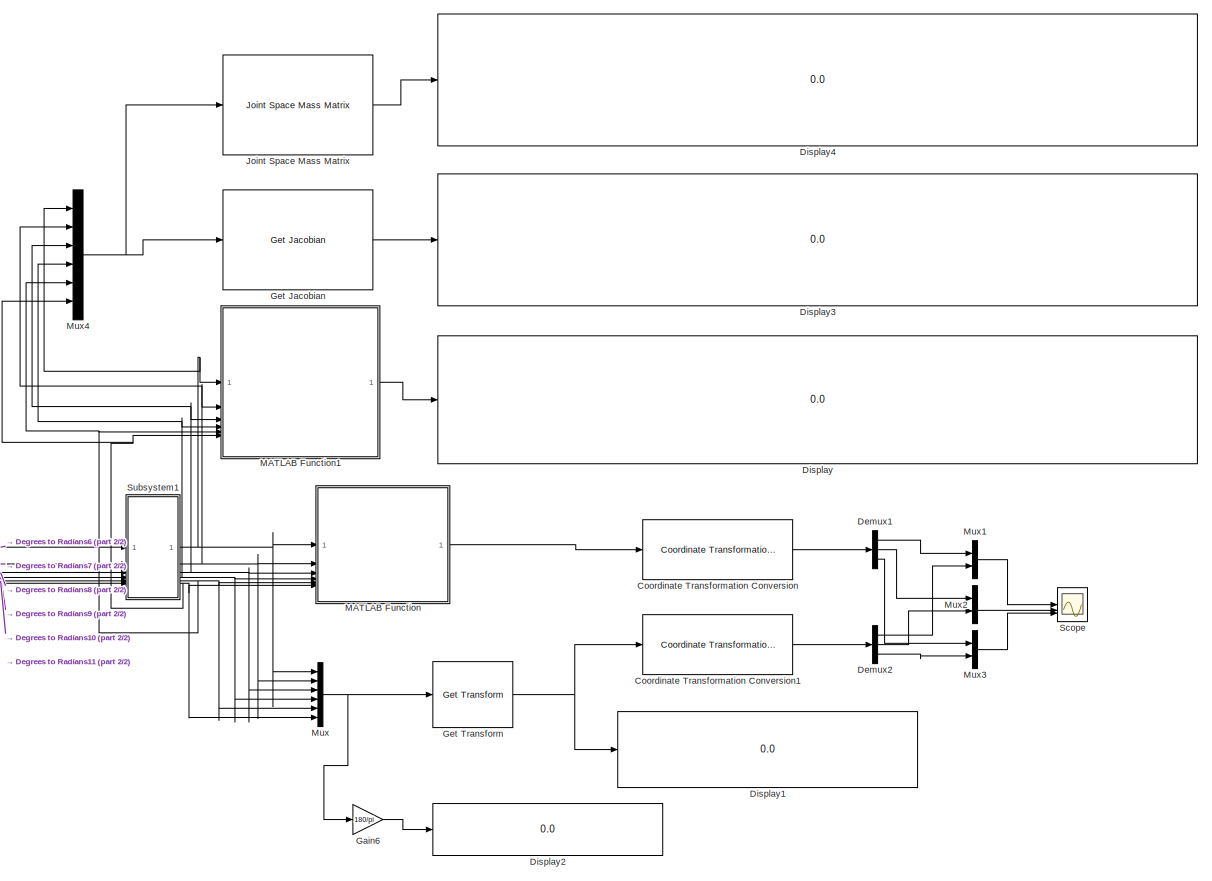
[diagram: root canvas - part 1/2, most of the canvas]
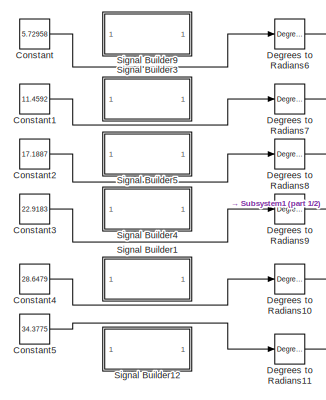
[diagram: root canvas - part 2/2, bottom left region]
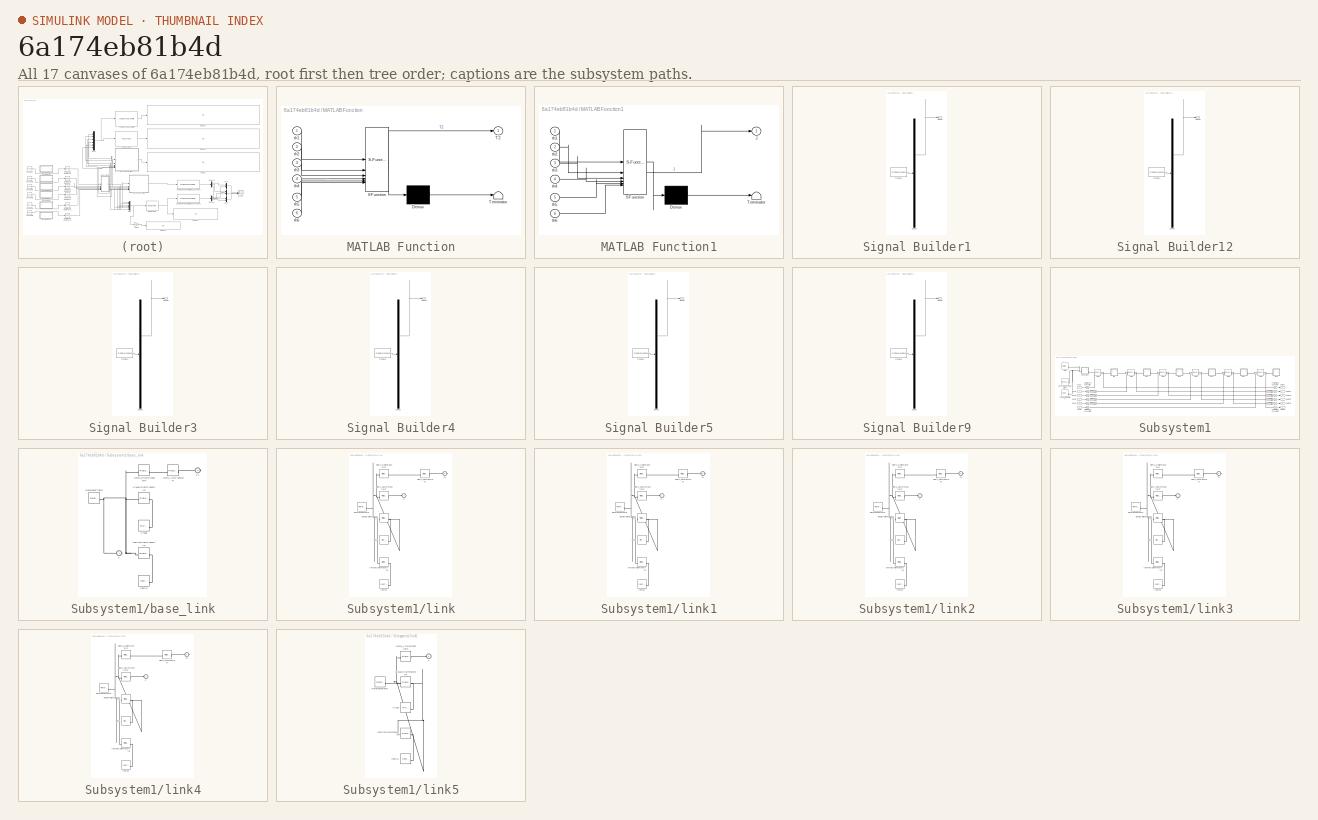
[diagram: thumbnail index - all 17 canvases of the model, root first then tree order]
MODEL slx_6a174eb81b4d
KIND model
CONFIG AbsTol = auto
CONFIG EnableMultiTasking = off
CONFIG FixedStep = auto
CONFIG MaxStep = auto
CONFIG MinStep = auto
CONFIG RelTol = 1e-3
CONFIG SampleTimeConstraint = Unconstrained
CONFIG SolverName = VariableStepAuto
CONFIG StartTime = 0.0
CONFIG StopTime = 5
BLOCK [Constant] Constant
  Value = 5.72958
BLOCK [Constant] Constant1
  Value = 11.4592
BLOCK [Constant] Constant2
  Value = 17.1887
BLOCK [Constant] Constant3
  Value = 22.9183
BLOCK [Constant] Constant4
  Value = 28.6479
BLOCK [Constant] Constant5
  Value = 34.3775
BLOCK [Reference] Coordinate Transformation Conversion  REF=robotcorelib/Coordinate Transformation Conversion
  SourceBlock = robotcorelib/Coordinate Transformation Conversion
  SourceType = robotics.slcore.internal.block.CoordinateTransformationConversion
BLOCK [Reference] Coordinate Transformation Conversion1  REF=robotcorelib/Coordinate Transformation Conversion
  SourceBlock = robotcorelib/Coordinate Transformation Conversion
  SourceType = robotics.slcore.internal.block.CoordinateTransformationConversion
BLOCK [Reference] Degrees to Radians10  REF=simulink_extras/Transformations/Degrees to
Radians
  SourceBlock = simulink_extras/Transformations/Degrees to\nRadians
  SourceType = DegreesToRadians
BLOCK [Reference] Degrees to Radians11  REF=simulink_extras/Transformations/Degrees to
Radians
  SourceBlock = simulink_extras/Transformations/Degrees to\nRadians
  SourceType = DegreesToRadians
BLOCK [Reference] Degrees to Radians6  REF=simulink_extras/Transformations/Degrees to
Radians
  SourceBlock = simulink_extras/Transformations/Degrees to\nRadians
  SourceType = DegreesToRadians
BLOCK [Reference] Degrees to Radians7  REF=simulink_extras/Transformations/Degrees to
Radians
  SourceBlock = simulink_extras/Transformations/Degrees to\nRadians
  SourceType = DegreesToRadians
BLOCK [Reference] Degrees to Radians8  REF=simulink_extras/Transformations/Degrees to
Radians
  SourceBlock = simulink_extras/Transformations/Degrees to\nRadians
  SourceType = DegreesToRadians
BLOCK [Reference] Degrees to Radians9  REF=simulink_extras/Transformations/Degrees to
Radians
  SourceBlock = simulink_extras/Transformations/Degrees to\nRadians
  SourceType = DegreesToRadians
BLOCK [Demux] Demux1
  Outputs = 3
BLOCK [Demux] Demux2
  Outputs = 3
BLOCK [Display] Display
  Decimation = 1
  Format = long
BLOCK [Display] Display1
  Decimation = 1
BLOCK [Display] Display2
  Decimation = 1
BLOCK [Display] Display3
  Decimation = 1
  Format = long
BLOCK [Display] Display4
  Decimation = 1
  Format = long
BLOCK [Gain] Gain6
  Gain = 180/pi
BLOCK [Reference] Get Jacobian  REF=robotmaniplib/Get Jacobian
  SourceBlock = robotmaniplib/Get Jacobian
  SourceType = Get Jacobian
BLOCK [Reference] Get Transform  REF=robotmaniplib/Get Transform
  SourceBlock = robotmaniplib/Get Transform
  SourceType = Get Transform
BLOCK [Reference] Joint Space Mass Matrix  REF=robotmaniplib/Joint Space Mass Matrix
  SourceBlock = robotmaniplib/Joint Space Mass Matrix
  SourceType = Joint Space Mass Matrix
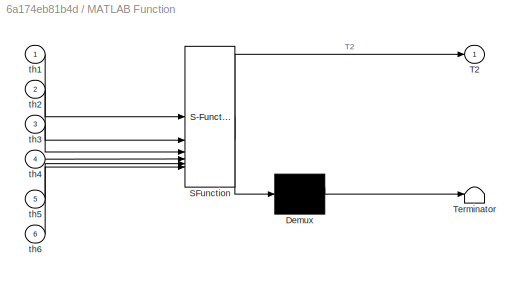
BLOCK [SubSystem] MATLAB Function
  ErrorFcn = Stateflow.Translate.translate
  PermitHierarchicalResolution = ExplicitOnly
  SFBlockType = MATLAB Function
  TreatAsAtomicUnit = on
BLOCK [Demux] MATLAB Function/ Demux 
  Outputs = 1
BLOCK [S-Function] MATLAB Function/ SFunction 
  EnableBusSupport = on
  FunctionName = sf_sfun
  PortCounts = [6 2]
  SFcnIsStateOwnerBlock = off
  SFunctionDeploymentMode = off
  Tag = Stateflow S-Function 2
BLOCK [Terminator] MATLAB Function/ Terminator 
BLOCK [Outport] MATLAB Function/T2
BLOCK [Inport] MATLAB Function/th1
BLOCK [Inport] MATLAB Function/th2
  Port = 2
BLOCK [Inport] MATLAB Function/th3
  Port = 3
BLOCK [Inport] MATLAB Function/th4
  Port = 4
BLOCK [Inport] MATLAB Function/th5
  Port = 5
BLOCK [Inport] MATLAB Function/th6
  Port = 6
BLOCK [SubSystem] MATLAB Function1
  ErrorFcn = Stateflow.Translate.translate
  LibrarySourceBlock = simulink/User-Defined\nFunctions/MATLAB Function
  PermitHierarchicalResolution = ExplicitOnly
  SFBlockType = MATLAB Function
  TreatAsAtomicUnit = on
BLOCK [Demux] MATLAB Function1/ Demux 
  Outputs = 1
BLOCK [S-Function] MATLAB Function1/ SFunction 
  EnableBusSupport = on
  FunctionName = sf_sfun
  PortCounts = [6 2]
  SFcnIsStateOwnerBlock = off
  SFunctionDeploymentMode = off
  Tag = Stateflow S-Function 1
BLOCK [Terminator] MATLAB Function1/ Terminator 
BLOCK [Outport] MATLAB Function1/J
BLOCK [Inport] MATLAB Function1/th1
BLOCK [Inport] MATLAB Function1/th2
  Port = 2
BLOCK [Inport] MATLAB Function1/th3
  Port = 3
BLOCK [Inport] MATLAB Function1/th4
  Port = 4
BLOCK [Inport] MATLAB Function1/th5
  Port = 5
BLOCK [Inport] MATLAB Function1/th6
  Port = 6
BLOCK [Mux] Mux
  AttributesFormatString = %<Single>
  DisplayOption = bar
  Inputs = 6
BLOCK [Mux] Mux1
  DisplayOption = bar
  Inputs = 2
BLOCK [Mux] Mux2
  DisplayOption = bar
  Inputs = 2
BLOCK [Mux] Mux3
  DisplayOption = bar
  Inputs = 2
BLOCK [Mux] Mux4
  DisplayOption = bar
  Inputs = 6
BLOCK [Scope] Scope
  Floating = off
  NumInputPorts = 3
  ScopeSpecificationString = Simulink.scopes.TimeScopeBlockCfg('CurrentConfiguration', extmgr.ConfigurationSet(extmgr.Configuration('Core','General UI',true,'FigureColor',[0 0 0]),extmgr.Configuration('Core','Source UI',true),extmgr.Configuration('Sources','WiredSimulink',true),extmgr.Configuration('Visuals','Time Domain',true,'SerializedDisplays',{struct('MinYLimReal','0.106','MaxYLimReal','0.92596','YLabelReal','','MinYLimM...<+3248ch>
BLOCK [SubSystem] Signal Builder1
  ClipboardFcn = sigbuilder_block('clipboard');
  CloseFcn = sigbuilder_block('close');
  Commented = on
  ContinueFcn = sigbuilder_block('continue');
  CopyFcn = sigbuilder_block('copy');
  DeleteFcn = sigbuilder_block('delete');
  LoadFcn = sigbuilder_block('load');
  MaskHideContents = on
  ModelCloseFcn = sigbuilder_block('modelClose');
  NameChangeFcn = sigbuilder_block('namechange');
  OpenFcn = sigbuilder_block('open',[5.5 36 949 412 ]);
  PauseFcn = sigbuilder_block('pause');
  PreSaveFcn = sigbuilder_block('preSave');
  StartFcn = sigbuilder_block('start');
  StopFcn = sigbuilder_block('stop');
  Tag = STV Subsys
BLOCK [Demux] Signal Builder1/Demux
  DisplayOption = none
  Outputs = 1
  Tag = STV Demux
BLOCK [FromWorkspace] Signal Builder1/FromWs
  Tag = STV FromWs
  VariableName = tuvar
BLOCK [Outport] Signal Builder1/Signal 1
  Tag = STV Outport
BLOCK [SubSystem] Signal Builder12
  ClipboardFcn = sigbuilder_block('clipboard');
  CloseFcn = sigbuilder_block('close');
  Commented = on
  ContinueFcn = sigbuilder_block('continue');
  CopyFcn = sigbuilder_block('copy');
  DeleteFcn = sigbuilder_block('delete');
  LoadFcn = sigbuilder_block('load');
  MaskHideContents = on
  ModelCloseFcn = sigbuilder_block('modelClose');
  NameChangeFcn = sigbuilder_block('namechange');
  OpenFcn = sigbuilder_block('open',[253.5 117 550.5 322 ]);
  PauseFcn = sigbuilder_block('pause');
  PreSaveFcn = sigbuilder_block('preSave');
  StartFcn = sigbuilder_block('start');
  StopFcn = sigbuilder_block('stop');
  Tag = STV Subsys
BLOCK [Demux] Signal Builder12/Demux
  DisplayOption = none
  Outputs = 1
  Tag = STV Demux
BLOCK [FromWorkspace] Signal Builder12/FromWs
  Tag = STV FromWs
  VariableName = tuvar
BLOCK [Outport] Signal Builder12/Signal 2
  Tag = STV Outport
BLOCK [SubSystem] Signal Builder3
  ClipboardFcn = sigbuilder_block('clipboard');
  CloseFcn = sigbuilder_block('close');
  Commented = on
  ContinueFcn = sigbuilder_block('continue');
  CopyFcn = sigbuilder_block('copy');
  DeleteFcn = sigbuilder_block('delete');
  LoadFcn = sigbuilder_block('load');
  MaskHideContents = on
  ModelCloseFcn = sigbuilder_block('modelClose');
  NameChangeFcn = sigbuilder_block('namechange');
  OpenFcn = sigbuilder_block('open',[5.5 36 949 412 ]);
  PauseFcn = sigbuilder_block('pause');
  PreSaveFcn = sigbuilder_block('preSave');
  StartFcn = sigbuilder_block('start');
  StopFcn = sigbuilder_block('stop');
  Tag = STV Subsys
BLOCK [Demux] Signal Builder3/Demux
  DisplayOption = none
  Outputs = 1
  Tag = STV Demux
BLOCK [FromWorkspace] Signal Builder3/FromWs
  Tag = STV FromWs
  VariableName = tuvar
BLOCK [Outport] Signal Builder3/Signal 2
  Tag = STV Outport
BLOCK [SubSystem] Signal Builder4
  ClipboardFcn = sigbuilder_block('clipboard');
  CloseFcn = sigbuilder_block('close');
  Commented = on
  ContinueFcn = sigbuilder_block('continue');
  CopyFcn = sigbuilder_block('copy');
  DeleteFcn = sigbuilder_block('delete');
  LoadFcn = sigbuilder_block('load');
  MaskHideContents = on
  ModelCloseFcn = sigbuilder_block('modelClose');
  NameChangeFcn = sigbuilder_block('namechange');
  OpenFcn = sigbuilder_block('open',[5.5 36 949 412 ]);
  PauseFcn = sigbuilder_block('pause');
  PreSaveFcn = sigbuilder_block('preSave');
  StartFcn = sigbuilder_block('start');
  StopFcn = sigbuilder_block('stop');
  Tag = STV Subsys
BLOCK [Demux] Signal Builder4/Demux
  DisplayOption = none
  Outputs = 1
  Tag = STV Demux
BLOCK [FromWorkspace] Signal Builder4/FromWs
  Tag = STV FromWs
  VariableName = tuvar
BLOCK [Outport] Signal Builder4/Signal 1
  Tag = STV Outport
BLOCK [SubSystem] Signal Builder5
  ClipboardFcn = sigbuilder_block('clipboard');
  CloseFcn = sigbuilder_block('close');
  Commented = on
  ContinueFcn = sigbuilder_block('continue');
  CopyFcn = sigbuilder_block('copy');
  DeleteFcn = sigbuilder_block('delete');
  LoadFcn = sigbuilder_block('load');
  MaskHideContents = on
  ModelCloseFcn = sigbuilder_block('modelClose');
  NameChangeFcn = sigbuilder_block('namechange');
  OpenFcn = sigbuilder_block('open',[5.5 36 949 412 ]);
  PauseFcn = sigbuilder_block('pause');
  PreSaveFcn = sigbuilder_block('preSave');
  StartFcn = sigbuilder_block('start');
  StopFcn = sigbuilder_block('stop');
  Tag = STV Subsys
BLOCK [Demux] Signal Builder5/Demux
  DisplayOption = none
  Outputs = 1
  Tag = STV Demux
BLOCK [FromWorkspace] Signal Builder5/FromWs
  Tag = STV FromWs
  VariableName = tuvar
BLOCK [Outport] Signal Builder5/Signal 2
  Tag = STV Outport
BLOCK [SubSystem] Signal Builder9
  ClipboardFcn = sigbuilder_block('clipboard');
  CloseFcn = sigbuilder_block('close');
  Commented = on
  ContinueFcn = sigbuilder_block('continue');
  CopyFcn = sigbuilder_block('copy');
  DeleteFcn = sigbuilder_block('delete');
  LoadFcn = sigbuilder_block('load');
  MaskHideContents = on
  ModelCloseFcn = sigbuilder_block('modelClose');
  NameChangeFcn = sigbuilder_block('namechange');
  OpenFcn = sigbuilder_block('open',[5.5 36 949 412 ]);
  PauseFcn = sigbuilder_block('pause');
  PreSaveFcn = sigbuilder_block('preSave');
  StartFcn = sigbuilder_block('start');
  StopFcn = sigbuilder_block('stop');
  Tag = STV Subsys
BLOCK [Demux] Signal Builder9/Demux
  DisplayOption = none
  Outputs = 1
  Tag = STV Demux
BLOCK [FromWorkspace] Signal Builder9/FromWs
  Tag = STV FromWs
  VariableName = tuvar
BLOCK [Outport] Signal Builder9/Signal 1
  Tag = STV Outport
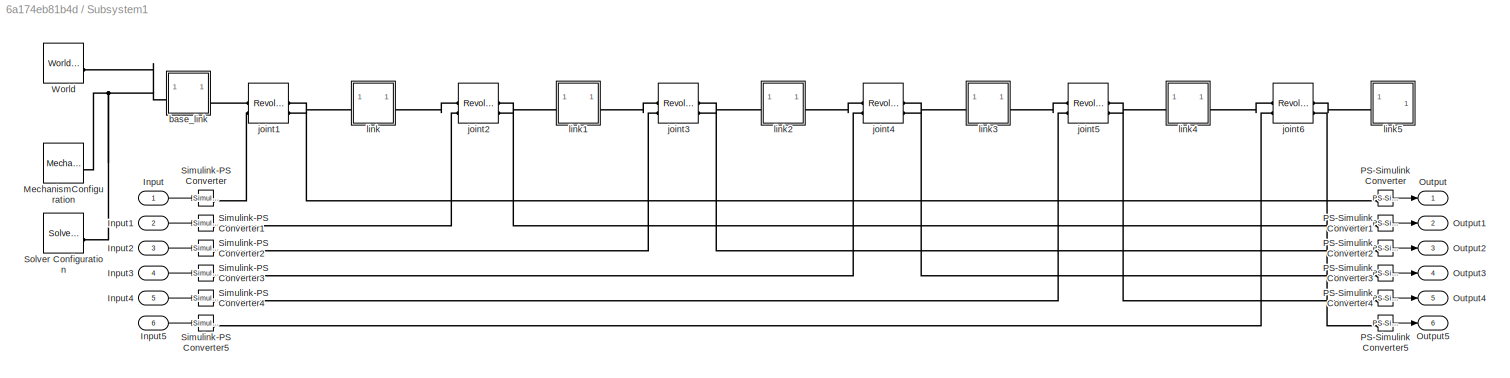
BLOCK [SubSystem] Subsystem1
BLOCK [Inport] Subsystem1/Input
BLOCK [Inport] Subsystem1/Input1
  Port = 2
BLOCK [Inport] Subsystem1/Input2
  Port = 3
BLOCK [Inport] Subsystem1/Input3
  Port = 4
BLOCK [Inport] Subsystem1/Input4
  Port = 5
BLOCK [Inport] Subsystem1/Input5
  Port = 6
BLOCK [Reference] Subsystem1/MechanismConfiguration  REF=sm_lib/Utilities/Mechanism
Configuration
  SourceBlock = sm_lib/Utilities/Mechanism\nConfiguration
  SourceType = Mechanism\nConfiguration
BLOCK [Outport] Subsystem1/Output
BLOCK [Outport] Subsystem1/Output1
  Port = 2
BLOCK [Outport] Subsystem1/Output2
  Port = 3
BLOCK [Outport] Subsystem1/Output3
  Port = 4
BLOCK [Outport] Subsystem1/Output4
  Port = 5
BLOCK [Outport] Subsystem1/Output5
  Port = 6
BLOCK [Reference] Subsystem1/PS-Simulink Converter  REF=nesl_utility/PS-Simulink
Converter
  SourceBlock = nesl_utility/PS-Simulink\nConverter
  SourceType = PS-Simulink\nConverter
BLOCK [Reference] Subsystem1/PS-Simulink Converter1  REF=nesl_utility/PS-Simulink
Converter
  SourceBlock = nesl_utility/PS-Simulink\nConverter
  SourceType = PS-Simulink\nConverter
BLOCK [Reference] Subsystem1/PS-Simulink Converter2  REF=nesl_utility/PS-Simulink
Converter
  SourceBlock = nesl_utility/PS-Simulink\nConverter
  SourceType = PS-Simulink\nConverter
BLOCK [Reference] Subsystem1/PS-Simulink Converter3  REF=nesl_utility/PS-Simulink
Converter
  SourceBlock = nesl_utility/PS-Simulink\nConverter
  SourceType = PS-Simulink\nConverter
BLOCK [Reference] Subsystem1/PS-Simulink Converter4  REF=nesl_utility/PS-Simulink
Converter
  SourceBlock = nesl_utility/PS-Simulink\nConverter
  SourceType = PS-Simulink\nConverter
BLOCK [Reference] Subsystem1/PS-Simulink Converter5  REF=nesl_utility/PS-Simulink
Converter
  SourceBlock = nesl_utility/PS-Simulink\nConverter
  SourceType = PS-Simulink\nConverter
BLOCK [Reference] Subsystem1/Simulink-PS Converter  REF=nesl_utility/Simulink-PS
Converter
  SourceBlock = nesl_utility/Simulink-PS\nConverter
  SourceType = Simulink-PS\nConverter
BLOCK [Reference] Subsystem1/Simulink-PS Converter1  REF=nesl_utility/Simulink-PS
Converter
  SourceBlock = nesl_utility/Simulink-PS\nConverter
  SourceType = Simulink-PS\nConverter
BLOCK [Reference] Subsystem1/Simulink-PS Converter2  REF=nesl_utility/Simulink-PS
Converter
  SourceBlock = nesl_utility/Simulink-PS\nConverter
  SourceType = Simulink-PS\nConverter
BLOCK [Reference] Subsystem1/Simulink-PS Converter3  REF=nesl_utility/Simulink-PS
Converter
  SourceBlock = nesl_utility/Simulink-PS\nConverter
  SourceType = Simulink-PS\nConverter
BLOCK [Reference] Subsystem1/Simulink-PS Converter4  REF=nesl_utility/Simulink-PS
Converter
  SourceBlock = nesl_utility/Simulink-PS\nConverter
  SourceType = Simulink-PS\nConverter
BLOCK [Reference] Subsystem1/Simulink-PS Converter5  REF=nesl_utility/Simulink-PS
Converter
  SourceBlock = nesl_utility/Simulink-PS\nConverter
  SourceType = Simulink-PS\nConverter
BLOCK [Reference] Subsystem1/Solver Configuration  REF=nesl_utility/Solver
Configuration
  SourceBlock = nesl_utility/Solver\nConfiguration
  SourceType = Solver\nConfiguration
BLOCK [Reference] Subsystem1/World  REF=sm_lib/Frames and
Transforms/World Frame
  SourceBlock = sm_lib/Frames and\nTransforms/World Frame
  SourceType = World Frame
BLOCK [SubSystem] Subsystem1/base_link
BLOCK [PMIOPort] Subsystem1/base_link/F
  Side = Left
BLOCK [PMIOPort] Subsystem1/base_link/F1
  Port = 2
  Side = Right
BLOCK [Reference] Subsystem1/base_link/Inertia  REF=sm_lib/Body Elements/Inertia
  SourceBlock = sm_lib/Body Elements/Inertia
  SourceType = Inertia
BLOCK [Reference] Subsystem1/base_link/InertiaOriginTransform  REF=sm_lib/Frames and
Transforms/Rigid
Transform
  SourceBlock = sm_lib/Frames and\nTransforms/Rigid\nTransform
  SourceType = Rigid\nTransform
BLOCK [Reference] Subsystem1/base_link/ReferenceFrame  REF=sm_lib/Frames and
Transforms/Reference
Frame
  SourceBlock = sm_lib/Frames and\nTransforms/Reference\nFrame
  SourceType = Reference\nFrame
BLOCK [Reference] Subsystem1/base_link/Visual  REF=sm_lib/Body Elements/File Solid
  SourceBlock = sm_lib/Body Elements/File Solid
  SourceType = File Solid
BLOCK [Reference] Subsystem1/base_link/VisualOriginTransform  REF=sm_lib/Frames and
Transforms/Rigid
Transform
  SourceBlock = sm_lib/Frames and\nTransforms/Rigid\nTransform
  SourceType = Rigid\nTransform
BLOCK [Reference] Subsystem1/base_link/joint1_AxisTransform  REF=sm_lib/Frames and
Transforms/Rigid
Transform
  SourceBlock = sm_lib/Frames and\nTransforms/Rigid\nTransform
  SourceType = Rigid\nTransform
BLOCK [Reference] Subsystem1/base_link/joint1_OriginTransform  REF=sm_lib/Frames and
Transforms/Rigid
Transform
  SourceBlock = sm_lib/Frames and\nTransforms/Rigid\nTransform
  SourceType = Rigid\nTransform
BLOCK [Reference] Subsystem1/joint1  REF=sm_lib/Joints/Revolute Joint
  SourceBlock = sm_lib/Joints/Revolute Joint
  SourceType = Revolute Joint
BLOCK [Reference] Subsystem1/joint2  REF=sm_lib/Joints/Revolute Joint
  SourceBlock = sm_lib/Joints/Revolute Joint
  SourceType = Revolute Joint
BLOCK [Reference] Subsystem1/joint3  REF=sm_lib/Joints/Revolute Joint
  SourceBlock = sm_lib/Joints/Revolute Joint
  SourceType = Revolute Joint
BLOCK [Reference] Subsystem1/joint4  REF=sm_lib/Joints/Revolute Joint
  SourceBlock = sm_lib/Joints/Revolute Joint
  SourceType = Revolute Joint
BLOCK [Reference] Subsystem1/joint5  REF=sm_lib/Joints/Revolute Joint
  SourceBlock = sm_lib/Joints/Revolute Joint
  SourceType = Revolute Joint
BLOCK [Reference] Subsystem1/joint6  REF=sm_lib/Joints/Revolute Joint
  SourceBlock = sm_lib/Joints/Revolute Joint
  SourceType = Revolute Joint
BLOCK [SubSystem] Subsystem1/link
BLOCK [PMIOPort] Subsystem1/link/F
  Side = Left
BLOCK [PMIOPort] Subsystem1/link/F1
  Port = 2
  Side = Right
BLOCK [Reference] Subsystem1/link/Inertia  REF=sm_lib/Body Elements/Inertia
  SourceBlock = sm_lib/Body Elements/Inertia
  SourceType = Inertia
BLOCK [Reference] Subsystem1/link/InertiaOriginTransform  REF=sm_lib/Frames and
Transforms/Rigid
Transform
  SourceBlock = sm_lib/Frames and\nTransforms/Rigid\nTransform
  SourceType = Rigid\nTransform
BLOCK [Reference] Subsystem1/link/ReferenceFrame  REF=sm_lib/Frames and
Transforms/Reference
Frame
  SourceBlock = sm_lib/Frames and\nTransforms/Reference\nFrame
  SourceType = Reference\nFrame
BLOCK [Reference] Subsystem1/link/Visual  REF=sm_lib/Body Elements/File Solid
  SourceBlock = sm_lib/Body Elements/File Solid
  SourceType = File Solid
BLOCK [Reference] Subsystem1/link/VisualOriginTransform  REF=sm_lib/Frames and
Transforms/Rigid
Transform
  SourceBlock = sm_lib/Frames and\nTransforms/Rigid\nTransform
  SourceType = Rigid\nTransform
BLOCK [Reference] Subsystem1/link/joint1_AxisInvTransform  REF=sm_lib/Frames and
Transforms/Rigid
Transform
  SourceBlock = sm_lib/Frames and\nTransforms/Rigid\nTransform
  SourceType = Rigid\nTransform
BLOCK [Reference] Subsystem1/link/joint2_AxisTransform  REF=sm_lib/Frames and
Transforms/Rigid
Transform
  SourceBlock = sm_lib/Frames and\nTransforms/Rigid\nTransform
  SourceType = Rigid\nTransform
BLOCK [Reference] Subsystem1/link/joint2_OriginTransform  REF=sm_lib/Frames and
Transforms/Rigid
Transform
  SourceBlock = sm_lib/Frames and\nTransforms/Rigid\nTransform
  SourceType = Rigid\nTransform
BLOCK [SubSystem] Subsystem1/link1
BLOCK [PMIOPort] Subsystem1/link1/F
  Side = Left
BLOCK [PMIOPort] Subsystem1/link1/F1
  Port = 2
  Side = Right
BLOCK [Reference] Subsystem1/link1/Inertia  REF=sm_lib/Body Elements/Inertia
  SourceBlock = sm_lib/Body Elements/Inertia
  SourceType = Inertia
BLOCK [Reference] Subsystem1/link1/InertiaOriginTransform  REF=sm_lib/Frames and
Transforms/Rigid
Transform
  SourceBlock = sm_lib/Frames and\nTransforms/Rigid\nTransform
  SourceType = Rigid\nTransform
BLOCK [Reference] Subsystem1/link1/ReferenceFrame  REF=sm_lib/Frames and
Transforms/Reference
Frame
  SourceBlock = sm_lib/Frames and\nTransforms/Reference\nFrame
  SourceType = Reference\nFrame
BLOCK [Reference] Subsystem1/link1/Visual  REF=sm_lib/Body Elements/File Solid
  SourceBlock = sm_lib/Body Elements/File Solid
  SourceType = File Solid
BLOCK [Reference] Subsystem1/link1/VisualOriginTransform  REF=sm_lib/Frames and
Transforms/Rigid
Transform
  SourceBlock = sm_lib/Frames and\nTransforms/Rigid\nTransform
  SourceType = Rigid\nTransform
BLOCK [Reference] Subsystem1/link1/joint2_AxisInvTransform  REF=sm_lib/Frames and
Transforms/Rigid
Transform
  SourceBlock = sm_lib/Frames and\nTransforms/Rigid\nTransform
  SourceType = Rigid\nTransform
BLOCK [Reference] Subsystem1/link1/joint3_AxisTransform  REF=sm_lib/Frames and
Transforms/Rigid
Transform
  SourceBlock = sm_lib/Frames and\nTransforms/Rigid\nTransform
  SourceType = Rigid\nTransform
BLOCK [Reference] Subsystem1/link1/joint3_OriginTransform  REF=sm_lib/Frames and
Transforms/Rigid
Transform
  SourceBlock = sm_lib/Frames and\nTransforms/Rigid\nTransform
  SourceType = Rigid\nTransform
BLOCK [SubSystem] Subsystem1/link2
BLOCK [PMIOPort] Subsystem1/link2/F
  Side = Left
BLOCK [PMIOPort] Subsystem1/link2/F1
  Port = 2
  Side = Right
BLOCK [Reference] Subsystem1/link2/Inertia  REF=sm_lib/Body Elements/Inertia
  SourceBlock = sm_lib/Body Elements/Inertia
  SourceType = Inertia
BLOCK [Reference] Subsystem1/link2/InertiaOriginTransform  REF=sm_lib/Frames and
Transforms/Rigid
Transform
  SourceBlock = sm_lib/Frames and\nTransforms/Rigid\nTransform
  SourceType = Rigid\nTransform
BLOCK [Reference] Subsystem1/link2/ReferenceFrame  REF=sm_lib/Frames and
Transforms/Reference
Frame
  SourceBlock = sm_lib/Frames and\nTransforms/Reference\nFrame
  SourceType = Reference\nFrame
BLOCK [Reference] Subsystem1/link2/Visual  REF=sm_lib/Body Elements/File Solid
  SourceBlock = sm_lib/Body Elements/File Solid
  SourceType = File Solid
BLOCK [Reference] Subsystem1/link2/VisualOriginTransform  REF=sm_lib/Frames and
Transforms/Rigid
Transform
  SourceBlock = sm_lib/Frames and\nTransforms/Rigid\nTransform
  SourceType = Rigid\nTransform
BLOCK [Reference] Subsystem1/link2/joint3_AxisInvTransform  REF=sm_lib/Frames and
Transforms/Rigid
Transform
  SourceBlock = sm_lib/Frames and\nTransforms/Rigid\nTransform
  SourceType = Rigid\nTransform
BLOCK [Reference] Subsystem1/link2/joint4_AxisTransform  REF=sm_lib/Frames and
Transforms/Rigid
Transform
  SourceBlock = sm_lib/Frames and\nTransforms/Rigid\nTransform
  SourceType = Rigid\nTransform
BLOCK [Reference] Subsystem1/link2/joint4_OriginTransform  REF=sm_lib/Frames and
Transforms/Rigid
Transform
  SourceBlock = sm_lib/Frames and\nTransforms/Rigid\nTransform
  SourceType = Rigid\nTransform
BLOCK [SubSystem] Subsystem1/link3
BLOCK [PMIOPort] Subsystem1/link3/F
  Side = Left
BLOCK [PMIOPort] Subsystem1/link3/F1
  Port = 2
  Side = Right
BLOCK [Reference] Subsystem1/link3/Inertia  REF=sm_lib/Body Elements/Inertia
  SourceBlock = sm_lib/Body Elements/Inertia
  SourceType = Inertia
BLOCK [Reference] Subsystem1/link3/InertiaOriginTransform  REF=sm_lib/Frames and
Transforms/Rigid
Transform
  SourceBlock = sm_lib/Frames and\nTransforms/Rigid\nTransform
  SourceType = Rigid\nTransform
BLOCK [Reference] Subsystem1/link3/ReferenceFrame  REF=sm_lib/Frames and
Transforms/Reference
Frame
  SourceBlock = sm_lib/Frames and\nTransforms/Reference\nFrame
  SourceType = Reference\nFrame
BLOCK [Reference] Subsystem1/link3/Visual  REF=sm_lib/Body Elements/File Solid
  SourceBlock = sm_lib/Body Elements/File Solid
  SourceType = File Solid
BLOCK [Reference] Subsystem1/link3/VisualOriginTransform  REF=sm_lib/Frames and
Transforms/Rigid
Transform
  SourceBlock = sm_lib/Frames and\nTransforms/Rigid\nTransform
  SourceType = Rigid\nTransform
BLOCK [Reference] Subsystem1/link3/joint4_AxisInvTransform  REF=sm_lib/Frames and
Transforms/Rigid
Transform
  SourceBlock = sm_lib/Frames and\nTransforms/Rigid\nTransform
  SourceType = Rigid\nTransform
BLOCK [Reference] Subsystem1/link3/joint5_AxisTransform  REF=sm_lib/Frames and
Transforms/Rigid
Transform
  SourceBlock = sm_lib/Frames and\nTransforms/Rigid\nTransform
  SourceType = Rigid\nTransform
BLOCK [Reference] Subsystem1/link3/joint5_OriginTransform  REF=sm_lib/Frames and
Transforms/Rigid
Transform
  SourceBlock = sm_lib/Frames and\nTransforms/Rigid\nTransform
  SourceType = Rigid\nTransform
BLOCK [SubSystem] Subsystem1/link4
BLOCK [PMIOPort] Subsystem1/link4/F
  Side = Left
BLOCK [PMIOPort] Subsystem1/link4/F1
  Port = 2
  Side = Right
BLOCK [Reference] Subsystem1/link4/Inertia  REF=sm_lib/Body Elements/Inertia
  SourceBlock = sm_lib/Body Elements/Inertia
  SourceType = Inertia
BLOCK [Reference] Subsystem1/link4/InertiaOriginTransform  REF=sm_lib/Frames and
Transforms/Rigid
Transform
  SourceBlock = sm_lib/Frames and\nTransforms/Rigid\nTransform
  SourceType = Rigid\nTransform
BLOCK [Reference] Subsystem1/link4/ReferenceFrame  REF=sm_lib/Frames and
Transforms/Reference
Frame
  SourceBlock = sm_lib/Frames and\nTransforms/Reference\nFrame
  SourceType = Reference\nFrame
BLOCK [Reference] Subsystem1/link4/Visual  REF=sm_lib/Body Elements/File Solid
  SourceBlock = sm_lib/Body Elements/File Solid
  SourceType = File Solid
BLOCK [Reference] Subsystem1/link4/VisualOriginTransform  REF=sm_lib/Frames and
Transforms/Rigid
Transform
  SourceBlock = sm_lib/Frames and\nTransforms/Rigid\nTransform
  SourceType = Rigid\nTransform
BLOCK [Reference] Subsystem1/link4/joint5_AxisInvTransform  REF=sm_lib/Frames and
Transforms/Rigid
Transform
  SourceBlock = sm_lib/Frames and\nTransforms/Rigid\nTransform
  SourceType = Rigid\nTransform
BLOCK [Reference] Subsystem1/link4/joint6_AxisTransform  REF=sm_lib/Frames and
Transforms/Rigid
Transform
  SourceBlock = sm_lib/Frames and\nTransforms/Rigid\nTransform
  SourceType = Rigid\nTransform
BLOCK [Reference] Subsystem1/link4/joint6_OriginTransform  REF=sm_lib/Frames and
Transforms/Rigid
Transform
  SourceBlock = sm_lib/Frames and\nTransforms/Rigid\nTransform
  SourceType = Rigid\nTransform
BLOCK [SubSystem] Subsystem1/link5
BLOCK [PMIOPort] Subsystem1/link5/F
  Side = Left
BLOCK [Reference] Subsystem1/link5/Inertia  REF=sm_lib/Body Elements/Inertia
  SourceBlock = sm_lib/Body Elements/Inertia
  SourceType = Inertia
BLOCK [Reference] Subsystem1/link5/InertiaOriginTransform  REF=sm_lib/Frames and
Transforms/Rigid
Transform
  SourceBlock = sm_lib/Frames and\nTransforms/Rigid\nTransform
  SourceType = Rigid\nTransform
BLOCK [Reference] Subsystem1/link5/ReferenceFrame  REF=sm_lib/Frames and
Transforms/Reference
Frame
  SourceBlock = sm_lib/Frames and\nTransforms/Reference\nFrame
  SourceType = Reference\nFrame
BLOCK [Reference] Subsystem1/link5/Visual  REF=sm_lib/Body Elements/File Solid
  SourceBlock = sm_lib/Body Elements/File Solid
  SourceType = File Solid
BLOCK [Reference] Subsystem1/link5/VisualOriginTransform  REF=sm_lib/Frames and
Transforms/Rigid
Transform
  SourceBlock = sm_lib/Frames and\nTransforms/Rigid\nTransform
  SourceType = Rigid\nTransform
BLOCK [Reference] Subsystem1/link5/joint6_AxisInvTransform  REF=sm_lib/Frames and
Transforms/Rigid
Transform
  SourceBlock = sm_lib/Frames and\nTransforms/Rigid\nTransform
  SourceType = Rigid\nTransform
LINE Constant1:1 -> Degrees to Radians7:1
LINE Constant2:1 -> Degrees to Radians8:1
LINE Constant3:1 -> Degrees to Radians9:1
LINE Constant4:1 -> Degrees to Radians10:1
LINE Constant5:1 -> Degrees to Radians11:1
LINE Constant:1 -> Degrees to Radians6:1
LINE Coordinate Transformation Conversion1:1 -> Demux2:1
LINE Coordinate Transformation Conversion:1 -> Demux1:1
LINE Degrees to Radians10:1 -> Subsystem1:5
LINE Degrees to Radians11:1 -> Subsystem1:6
LINE Degrees to Radians6:1 -> Subsystem1:1
LINE Degrees to Radians7:1 -> Subsystem1:2
LINE Degrees to Radians8:1 -> Subsystem1:3
LINE Degrees to Radians9:1 -> Subsystem1:4
LINE Demux1:1 -> Mux1:1
LINE Demux1:2 -> Mux2:1
LINE Demux1:3 -> Mux3:1
LINE Demux2:1 -> Mux1:2
LINE Demux2:2 -> Mux2:2
LINE Demux2:3 -> Mux3:2
LINE Gain6:1 -> Display2:1
LINE Get Jacobian:1 -> Display3:1
NET Get Transform:1 -> Coordinate Transformation Conversion1:1, Display1:1
LINE Joint Space Mass Matrix:1 -> Display4:1
LINE MATLAB Function1:1 -> Display:1
LINE MATLAB Function:1 -> Coordinate Transformation Conversion:1
LINE Mux1:1 -> Scope:1
LINE Mux2:1 -> Scope:2
LINE Mux3:1 -> Scope:3
NET Mux4:1 -> Get Jacobian:1, Joint Space Mass Matrix:1
NET Mux:1 -> Gain6:1, Get Transform:1
LINE Subsystem1/Input1:1 -> Subsystem1/Simulink-PS Converter1:1
LINE Subsystem1/Input2:1 -> Subsystem1/Simulink-PS Converter2:1
LINE Subsystem1/Input3:1 -> Subsystem1/Simulink-PS Converter3:1
LINE Subsystem1/Input4:1 -> Subsystem1/Simulink-PS Converter4:1
LINE Subsystem1/Input5:1 -> Subsystem1/Simulink-PS Converter5:1
LINE Subsystem1/Input:1 -> Subsystem1/Simulink-PS Converter:1
LINE Subsystem1/PS-Simulink Converter1:1 -> Subsystem1/Output1:1
LINE Subsystem1/PS-Simulink Converter2:1 -> Subsystem1/Output2:1
LINE Subsystem1/PS-Simulink Converter3:1 -> Subsystem1/Output3:1
LINE Subsystem1/PS-Simulink Converter4:1 -> Subsystem1/Output4:1
LINE Subsystem1/PS-Simulink Converter5:1 -> Subsystem1/Output5:1
LINE Subsystem1/PS-Simulink Converter:1 -> Subsystem1/Output:1
NET Subsystem1:1 -> MATLAB Function1:1, MATLAB Function:1, Mux4:1, Mux:1
NET Subsystem1:2 -> MATLAB Function1:2, MATLAB Function:2, Mux4:2, Mux:2
NET Subsystem1:3 -> MATLAB Function1:3, MATLAB Function:3, Mux4:3, Mux:3
NET Subsystem1:4 -> MATLAB Function1:4, MATLAB Function:4, Mux4:4, Mux:4
NET Subsystem1:5 -> MATLAB Function1:5, MATLAB Function:5, Mux4:5, Mux:5
NET Subsystem1:6 -> MATLAB Function1:6, MATLAB Function:6, Mux4:6, Mux:6
PNET net1: Subsystem1/MechanismConfiguration:RConn1 -- Subsystem1/Solver Configuration:RConn1 -- Subsystem1/World:RConn1 -- Subsystem1/base_link:LConn1
PLINE Subsystem1/PS-Simulink Converter1:LConn1 -- Subsystem1/joint2:RConn2
PLINE Subsystem1/PS-Simulink Converter2:LConn1 -- Subsystem1/joint3:RConn2
PLINE Subsystem1/PS-Simulink Converter3:LConn1 -- Subsystem1/joint4:RConn2
PLINE Subsystem1/PS-Simulink Converter4:LConn1 -- Subsystem1/joint5:RConn2
PLINE Subsystem1/PS-Simulink Converter5:LConn1 -- Subsystem1/joint6:RConn2
PLINE Subsystem1/PS-Simulink Converter:LConn1 -- Subsystem1/joint1:RConn2
PLINE Subsystem1/Simulink-PS Converter1:RConn1 -- Subsystem1/joint2:LConn2
PLINE Subsystem1/Simulink-PS Converter2:RConn1 -- Subsystem1/joint3:LConn2
PLINE Subsystem1/Simulink-PS Converter3:RConn1 -- Subsystem1/joint4:LConn2
PLINE Subsystem1/Simulink-PS Converter4:RConn1 -- Subsystem1/joint5:LConn2
PLINE Subsystem1/Simulink-PS Converter5:RConn1 -- Subsystem1/joint6:LConn2
PLINE Subsystem1/Simulink-PS Converter:RConn1 -- Subsystem1/joint1:LConn2
PLINE Subsystem1/base_link/F1:RConn1 -- Subsystem1/base_link/joint1_AxisTransform:RConn1
PNET net2: Subsystem1/base_link/F:RConn1 -- Subsystem1/base_link/InertiaOriginTransform:LConn1 -- Subsystem1/base_link/ReferenceFrame:RConn1 -- Subsystem1/base_link/VisualOriginTransform:LConn1 -- Subsystem1/base_link/joint1_OriginTransform:LConn1
PLINE Subsystem1/base_link/Inertia:RConn1 -- Subsystem1/base_link/InertiaOriginTransform:RConn1
PLINE Subsystem1/base_link/Visual:RConn1 -- Subsystem1/base_link/VisualOriginTransform:RConn1
PLINE Subsystem1/base_link/joint1_AxisTransform:LConn1 -- Subsystem1/base_link/joint1_OriginTransform:RConn1
PLINE Subsystem1/base_link:RConn1 -- Subsystem1/joint1:LConn1
PLINE Subsystem1/joint1:RConn1 -- Subsystem1/link:LConn1
PLINE Subsystem1/joint2:LConn1 -- Subsystem1/link:RConn1
PLINE Subsystem1/joint2:RConn1 -- Subsystem1/link1:LConn1
PLINE Subsystem1/joint3:LConn1 -- Subsystem1/link1:RConn1
PLINE Subsystem1/joint3:RConn1 -- Subsystem1/link2:LConn1
PLINE Subsystem1/joint4:LConn1 -- Subsystem1/link2:RConn1
PLINE Subsystem1/joint4:RConn1 -- Subsystem1/link3:LConn1
PLINE Subsystem1/joint5:LConn1 -- Subsystem1/link3:RConn1
PLINE Subsystem1/joint5:RConn1 -- Subsystem1/link4:LConn1
PLINE Subsystem1/joint6:LConn1 -- Subsystem1/link4:RConn1
PLINE Subsystem1/joint6:RConn1 -- Subsystem1/link5:LConn1
PLINE Subsystem1/link/F1:RConn1 -- Subsystem1/link/joint2_AxisTransform:RConn1
PLINE Subsystem1/link/F:RConn1 -- Subsystem1/link/joint1_AxisInvTransform:RConn1
PLINE Subsystem1/link/Inertia:RConn1 -- Subsystem1/link/InertiaOriginTransform:RConn1
PNET net3: Subsystem1/link/InertiaOriginTransform:LConn1 -- Subsystem1/link/ReferenceFrame:RConn1 -- Subsystem1/link/VisualOriginTransform:LConn1 -- Subsystem1/link/joint1_AxisInvTransform:LConn1 -- Subsystem1/link/joint2_OriginTransform:LConn1
PLINE Subsystem1/link/Visual:RConn1 -- Subsystem1/link/VisualOriginTransform:RConn1
PLINE Subsystem1/link/joint2_AxisTransform:LConn1 -- Subsystem1/link/joint2_OriginTransform:RConn1
PLINE Subsystem1/link1/F1:RConn1 -- Subsystem1/link1/joint3_AxisTransform:RConn1
PLINE Subsystem1/link1/F:RConn1 -- Subsystem1/link1/joint2_AxisInvTransform:RConn1
PLINE Subsystem1/link1/Inertia:RConn1 -- Subsystem1/link1/InertiaOriginTransform:RConn1
PNET net4: Subsystem1/link1/InertiaOriginTransform:LConn1 -- Subsystem1/link1/ReferenceFrame:RConn1 -- Subsystem1/link1/VisualOriginTransform:LConn1 -- Subsystem1/link1/joint2_AxisInvTransform:LConn1 -- Subsystem1/link1/joint3_OriginTransform:LConn1
PLINE Subsystem1/link1/Visual:RConn1 -- Subsystem1/link1/VisualOriginTransform:RConn1
PLINE Subsystem1/link1/joint3_AxisTransform:LConn1 -- Subsystem1/link1/joint3_OriginTransform:RConn1
PLINE Subsystem1/link2/F1:RConn1 -- Subsystem1/link2/joint4_AxisTransform:RConn1
PLINE Subsystem1/link2/F:RConn1 -- Subsystem1/link2/joint3_AxisInvTransform:RConn1
PLINE Subsystem1/link2/Inertia:RConn1 -- Subsystem1/link2/InertiaOriginTransform:RConn1
PNET net5: Subsystem1/link2/InertiaOriginTransform:LConn1 -- Subsystem1/link2/ReferenceFrame:RConn1 -- Subsystem1/link2/VisualOriginTransform:LConn1 -- Subsystem1/link2/joint3_AxisInvTransform:LConn1 -- Subsystem1/link2/joint4_OriginTransform:LConn1
PLINE Subsystem1/link2/Visual:RConn1 -- Subsystem1/link2/VisualOriginTransform:RConn1
PLINE Subsystem1/link2/joint4_AxisTransform:LConn1 -- Subsystem1/link2/joint4_OriginTransform:RConn1
PLINE Subsystem1/link3/F1:RConn1 -- Subsystem1/link3/joint5_AxisTransform:RConn1
PLINE Subsystem1/link3/F:RConn1 -- Subsystem1/link3/joint4_AxisInvTransform:RConn1
PLINE Subsystem1/link3/Inertia:RConn1 -- Subsystem1/link3/InertiaOriginTransform:RConn1
PNET net6: Subsystem1/link3/InertiaOriginTransform:LConn1 -- Subsystem1/link3/ReferenceFrame:RConn1 -- Subsystem1/link3/VisualOriginTransform:LConn1 -- Subsystem1/link3/joint4_AxisInvTransform:LConn1 -- Subsystem1/link3/joint5_OriginTransform:LConn1
PLINE Subsystem1/link3/Visual:RConn1 -- Subsystem1/link3/VisualOriginTransform:RConn1
PLINE Subsystem1/link3/joint5_AxisTransform:LConn1 -- Subsystem1/link3/joint5_OriginTransform:RConn1
PLINE Subsystem1/link4/F1:RConn1 -- Subsystem1/link4/joint6_AxisTransform:RConn1
PLINE Subsystem1/link4/F:RConn1 -- Subsystem1/link4/joint5_AxisInvTransform:RConn1
PLINE Subsystem1/link4/Inertia:RConn1 -- Subsystem1/link4/InertiaOriginTransform:RConn1
PNET net7: Subsystem1/link4/InertiaOriginTransform:LConn1 -- Subsystem1/link4/ReferenceFrame:RConn1 -- Subsystem1/link4/VisualOriginTransform:LConn1 -- Subsystem1/link4/joint5_AxisInvTransform:LConn1 -- Subsystem1/link4/joint6_OriginTransform:LConn1
PLINE Subsystem1/link4/Visual:RConn1 -- Subsystem1/link4/VisualOriginTransform:RConn1
PLINE Subsystem1/link4/joint6_AxisTransform:LConn1 -- Subsystem1/link4/joint6_OriginTransform:RConn1
PLINE Subsystem1/link5/F:RConn1 -- Subsystem1/link5/joint6_AxisInvTransform:RConn1
PLINE Subsystem1/link5/Inertia:RConn1 -- Subsystem1/link5/InertiaOriginTransform:RConn1
PNET net8: Subsystem1/link5/InertiaOriginTransform:LConn1 -- Subsystem1/link5/ReferenceFrame:RConn1 -- Subsystem1/link5/VisualOriginTransform:LConn1 -- Subsystem1/link5/joint6_AxisInvTransform:LConn1
PLINE Subsystem1/link5/Visual:RConn1 -- Subsystem1/link5/VisualOriginTransform:RConn1
note: NET lines group one-source signal fan-out (src -> all destinations, sorted); 1:1 wires keep LINE; PNET lines group multi-terminal physical nets as a canonical sorted terminal list (undirected conserving connections); 2-terminal nets keep the pairwise PLINE form
CHART MATLAB Function1 states=1 transitions=1
  STATE_LABEL 'eML_blk_kernel()'
  STATE_LABEL 'SCRIPT:\nfunction J = jacobian6DOF(th1, th2, th3, th4, th5, th6)\n    % Define the link parameters\n    d1 = 0.179; a2 = 0.410; a3 = 0.340; d4 = 0.188; d5 = 0.132; d6 = 0.0;\n    \n    % Define the trigonometric functions\n    c1 = cos(th1); c2 = cos(th2); c3 = cos(th3); c4 = cos(th4); c5 = cos(th5); c6 = cos(th6);\n    s1 = sin(th1); s2 = sin(th2); s3 = sin(th3); s4 = sin(th4); s5 = sin(th5); s6 = sin(t...<+2133ch>'
CHART MATLAB Function states=1 transitions=1
  STATE_LABEL 'eML_blk_kernel()'
  STATE_LABEL 'SCRIPT:\n% % function T2  = forward6DOF(th1,th2,th3,th4,th5,th6)\n% %     d1=0.179;a2=0.410;a3=0.340;d4=0.104;d5=0.089;d6=0.050;\n% %     c1=cos(th1); c2=cos(th2); c5=cos(th5); c6=cos(th6);c3=cos(th3);\n% %     s1=sin(th1); s2=sin(th2); s3=sin(th3);s5=sin(th5); s6=sin(th6);\n% %     c234=cos(th2+th3+th4); s234=sin(th2+th3+th4); c23=cos(th2+th3); s23=sin(th2+th3);\n% %     r11= c6*(s1*s5+((c1*c234- s1*s2...<+3410ch>'
CHART  states=0 transitions=0
CHART  states=0 transitions=0
